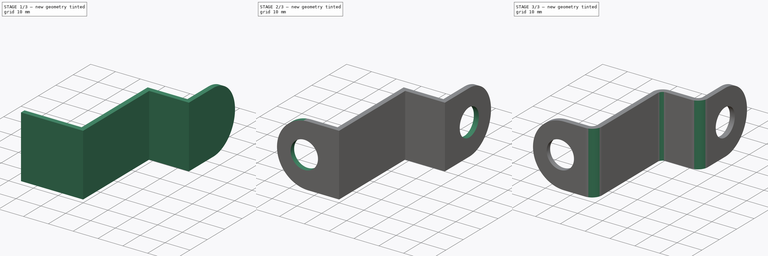
[diagram: build sequence overview — one tinted view per stage of 3, left to right]
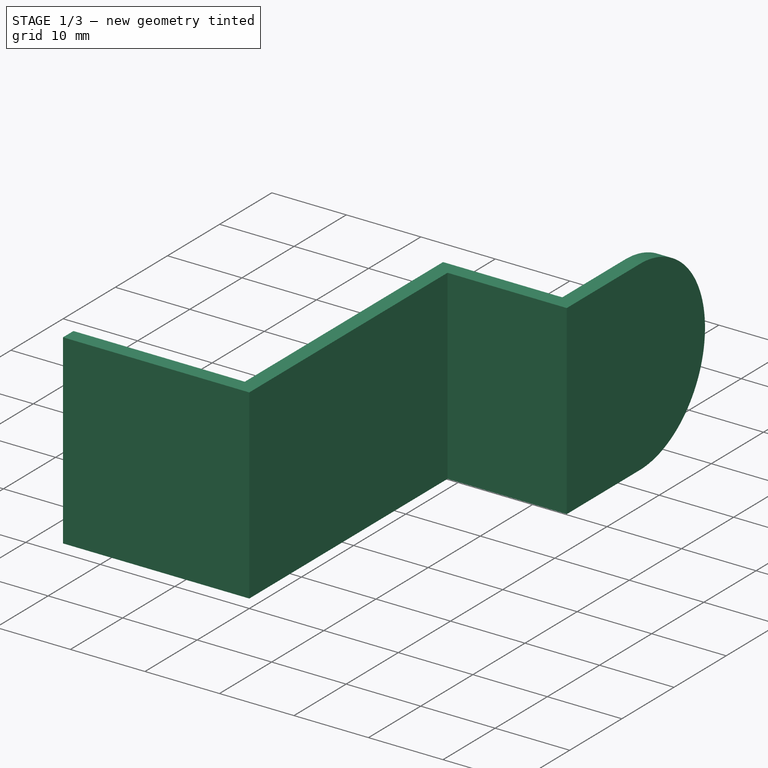
[diagram: stage 1 of 3 — iso view after this stage's code; geometry added in this stage tinted green]
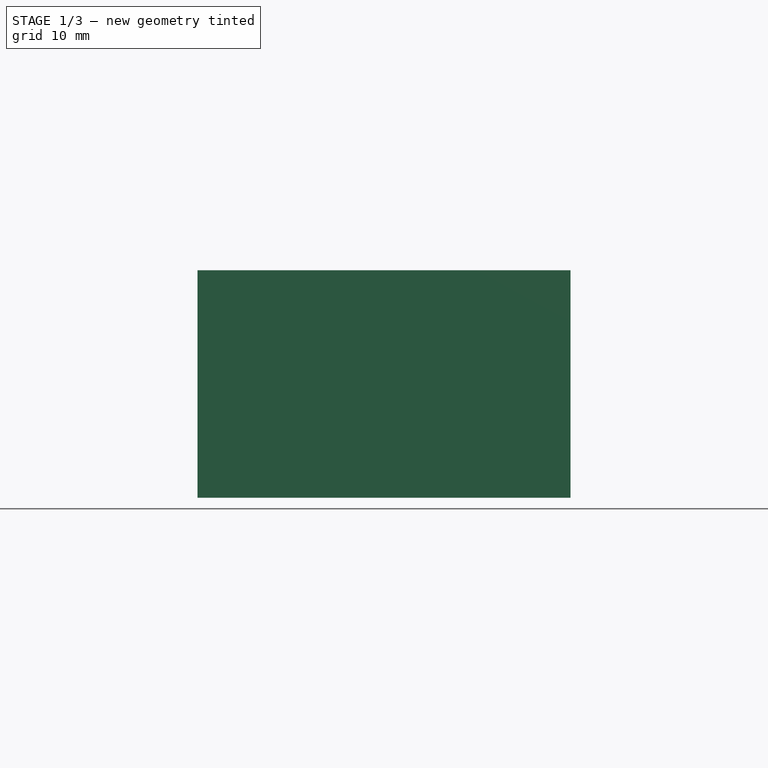
[diagram: stage 1 of 3 — front view after this stage's code; geometry added in this stage tinted green]
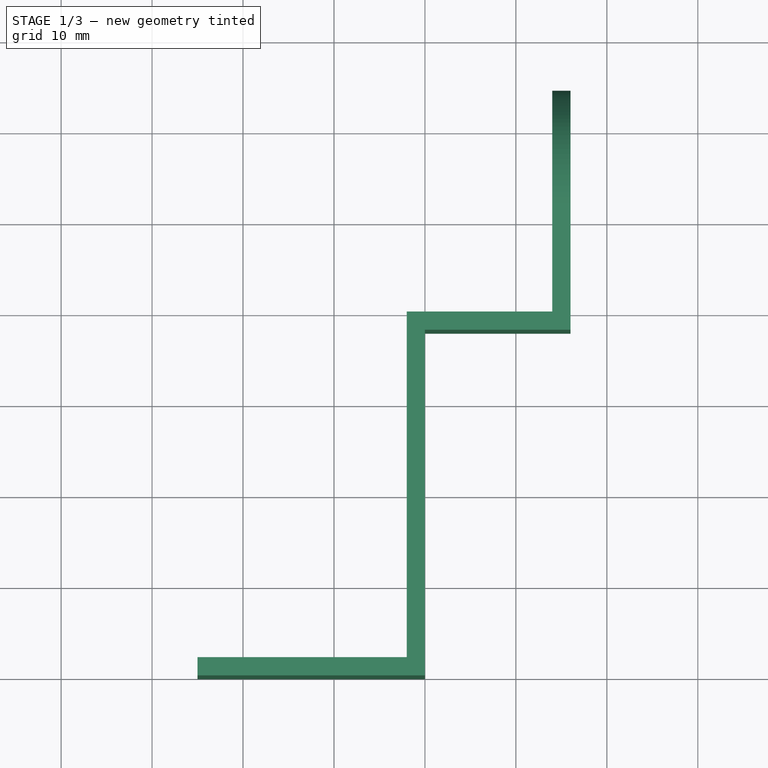
[diagram: stage 1 of 3 — top view after this stage's code; geometry added in this stage tinted green]
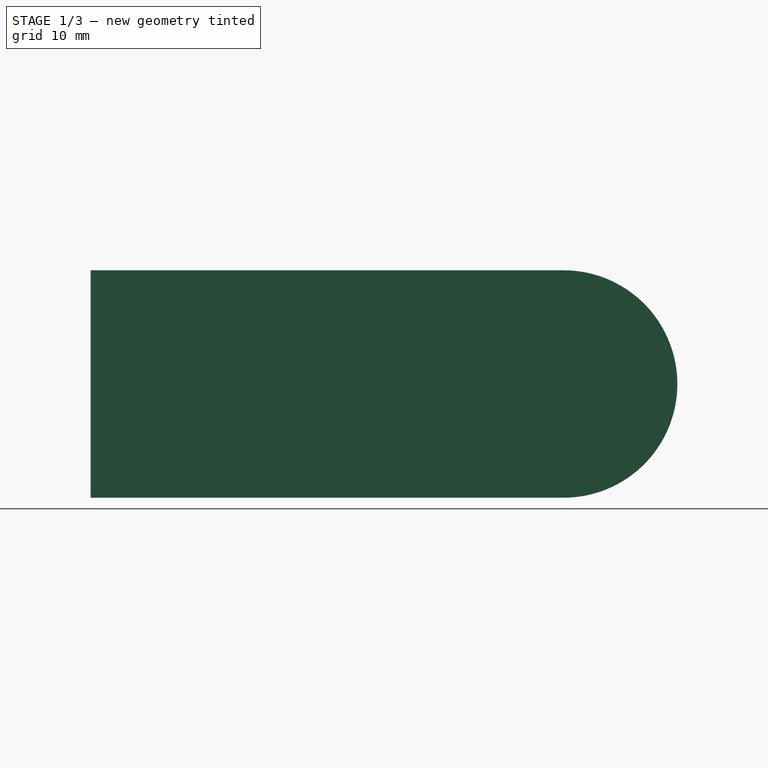
[diagram: stage 1 of 3 — right view after this stage's code; geometry added in this stage tinted green]
FCSTD DOCUMENT  (FreeCAD 0.18R4 (GitTag))
Label: door-lever-lock
License: All rights reserved
LicenseURL: http://en.wikipedia.org/wiki/All_rights_reserved
objects: Sketcher::SketchObject×5, PartDesign::Pocket×4, PartDesign::Fillet×2, PartDesign::Pad×1, PartDesign::Body×1
note: 18 computed .brp shape members not serialized (recipe doc carries the construction recipe); baked Part::Feature solids carry a one-line shape summary decoded from their .brp

FEATURE [Sketcher::SketchObject] Sketch
  MapMode = 5
  Support = -> [XY_Plane]
  sketch-geometry (10):
    g0: LineSegment StartX=-2 StartY=2 StartZ=0 EndX=-2 EndY=40 EndZ=0
    g1: LineSegment StartX=-2 StartY=40 StartZ=0 EndX=14 EndY=40 EndZ=0
    g2: LineSegment StartX=14 StartY=40 StartZ=0 EndX=14 EndY=64.5 EndZ=0
    g3: LineSegment StartX=14 StartY=64.5 StartZ=0 EndX=16 EndY=64.5 EndZ=0
    g4: LineSegment StartX=16 StartY=64.5 StartZ=0 EndX=16 EndY=38 EndZ=0
    g5: LineSegment StartX=16 StartY=38 StartZ=0 EndX=0 EndY=38 EndZ=0
    g6: LineSegment StartX=0 StartY=38 StartZ=0 EndX=0 EndY=0 EndZ=0
    g7: LineSegment StartX=0 StartY=0 StartZ=0 EndX=-25 EndY=0 EndZ=0
    g8: LineSegment StartX=-25 StartY=0 StartZ=0 EndX=-25 EndY=2 EndZ=0
    g9: LineSegment StartX=-25 StartY=2 StartZ=0 EndX=-2 EndY=2 EndZ=0
  constraints (29):
    c: Coincident(g1,g0)
    c: Horizontal(g1)
    c: Coincident(g2,g1)
    c: Vertical(g2)
    c: Coincident(g3,g2)
    c: Coincident(g4,g3)
    c: Vertical(g4)
    c: Coincident(g5,g4)
    c: Horizontal(g5)
    c: Coincident(g6,g5)
    c: Vertical(g6)
    c: Coincident(g7,g6)
    c: Horizontal(g7)
    c: DistanceX(g2,g3) = 2
    c: DistanceX(g0,g5) = 2
    c: DistanceY(g4,g1) = 2
    c: Horizontal(g3)
    c: Coincident(g6,g-1)
    c: Vertical(g0)
    c: Coincident(g8,g7)
    c: Vertical(g8)
    c: Coincident(g9,g8)
    c: Horizontal(g9)
    c: Coincident(g0,g9)
    c: DistanceY(g8,g8) = 2
    c: DistanceX(g7,g7) = 25
    c: DistanceY(g4,g4) = 26.5
    c: DistanceX(g0,g4) = 18
    c: DistanceY(g6,g0) = 40
FEATURE [PartDesign::Pad] Pad
  Length = 25
  Length2 = 100
  Profile = -> Sketch
  Refine = true
  Type = 0
FEATURE [Sketcher::SketchObject] Sketch001
  ExternalGeometry = -> [Pad]
  MapMode = 5
  Placement = pos=(14,0,0) rot=(0.57735,-0.57735,-0.57735;2.0944rad)
  Support = -> [Pad]
  sketch-geometry (6):
    g0: ArcOfCircle CenterX=-52 CenterY=12.5 CenterZ=0 NormalX=0 NormalY=0 NormalZ=1 AngleXU=0 Radius=12.5 StartAngle=1.5708 EndAngle=4.71239
    g1: LineSegment StartX=-80.5632 StartY=38.2573 StartZ=0 EndX=-80.5632 EndY=-15.5675 EndZ=0
    g2: LineSegment StartX=-52 StartY=25 StartZ=0 EndX=-52 EndY=38.2573 EndZ=0
    g3: LineSegment StartX=-52 StartY=38.2573 StartZ=0 EndX=-80.5632 EndY=38.2573 EndZ=0
    g4: LineSegment StartX=-52 StartY=0 StartZ=0 EndX=-52 EndY=-15.5675 EndZ=0
    g5: LineSegment StartX=-52 StartY=-15.5675 StartZ=0 EndX=-80.5632 EndY=-15.5675 EndZ=0
  constraints (16):
    c: PointOnObject(g0,g-1)
    c: Tangent(g0,g-1)
    c: Vertical(g1)
    c: PointOnObject(g0,g-3)
    c: Tangent(g0,g-4)
    c: Tangent(g0,g-3)
    c: Coincident(g2,g0)
    c: Vertical(g2)
    c: Coincident(g3,g2)
    c: Horizontal(g3)
    c: Coincident(g4,g0)
    c: Vertical(g4)
    c: Coincident(g5,g4)
    c: Horizontal(g5)
    c: Coincident(g1,g3)
    c: Coincident(g1,g5)
FEATURE [PartDesign::Pocket] Pocket
  BaseFeature = -> Pad
  Length = 5
  Length2 = 100
  Profile = -> Sketch001
  Refine = true
  Type = 1
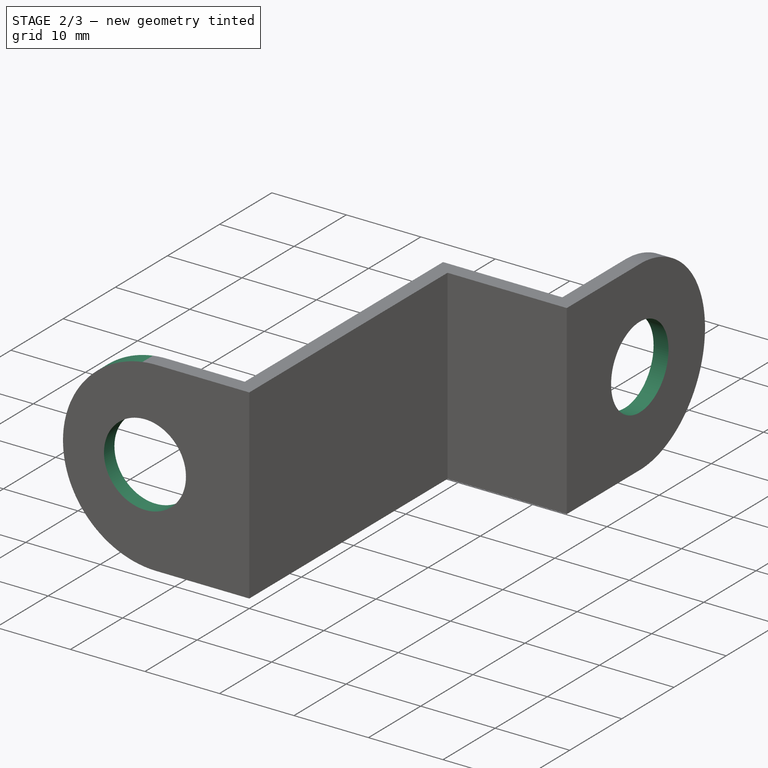
[diagram: stage 2 of 3 — iso view after this stage's code; geometry added in this stage tinted green]
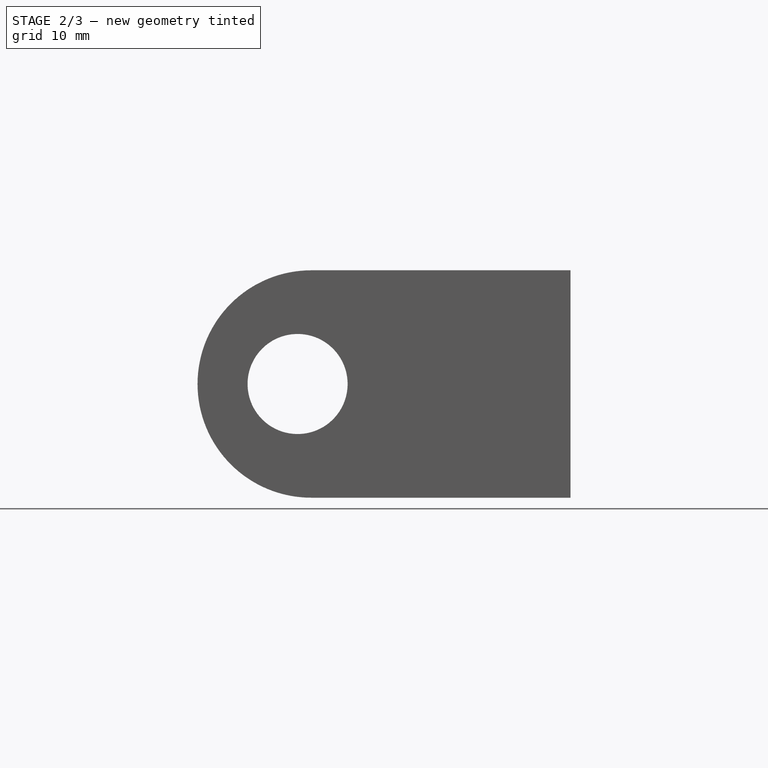
[diagram: stage 2 of 3 — front view after this stage's code; geometry added in this stage tinted green]
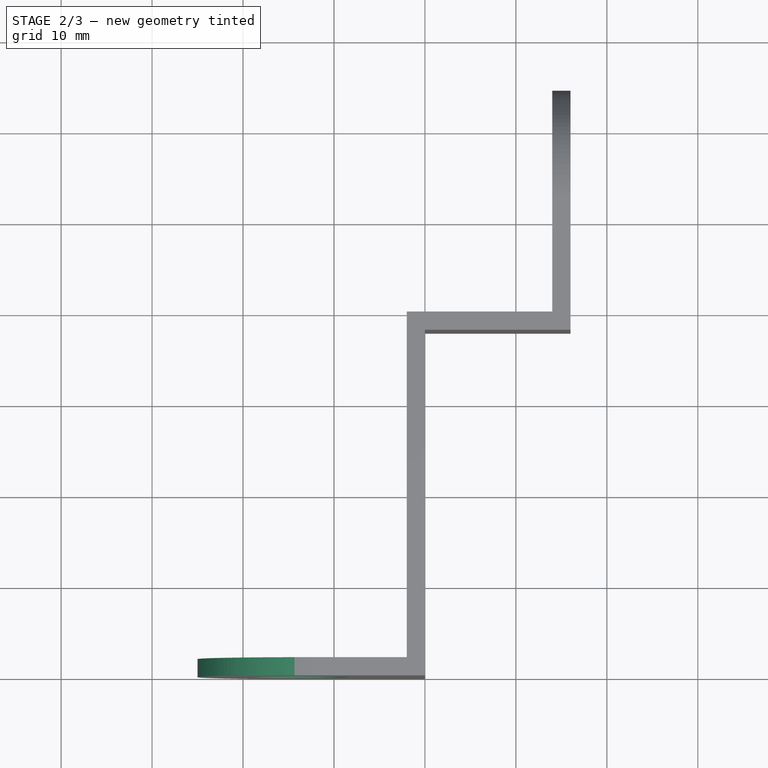
[diagram: stage 2 of 3 — top view after this stage's code; geometry added in this stage tinted green]
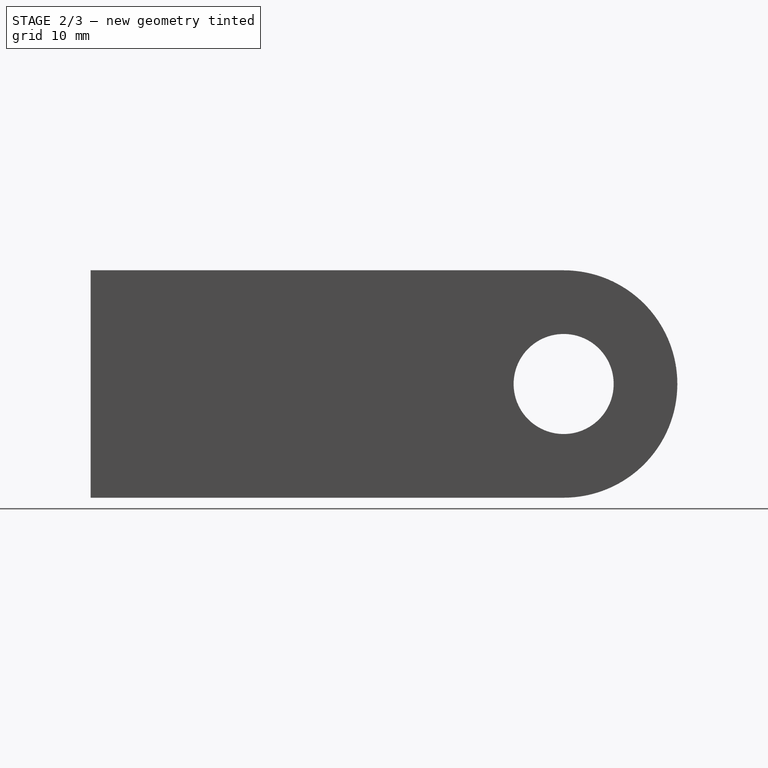
[diagram: stage 2 of 3 — right view after this stage's code; geometry added in this stage tinted green]
FEATURE [Sketcher::SketchObject] Sketch002
  ExternalGeometry = -> [Pocket]
  MapMode = 5
  Placement = pos=(0,2,0) rot=(0,0.707107,0.707107;3.14159rad)
  Support = -> [Pocket]
  sketch-geometry (6):
    g0: ArcOfCircle CenterX=12.5 CenterY=12.5 CenterZ=0 NormalX=0 NormalY=0 NormalZ=1 AngleXU=0 Radius=12.5 StartAngle=4.71239 EndAngle=7.85398
    g1: LineSegment StartX=12.5 StartY=25 StartZ=0 EndX=12.5 EndY=42.4513 EndZ=0
    g2: LineSegment StartX=12.5 StartY=42.4513 StartZ=0 EndX=36.5751 EndY=42.4513 EndZ=0
    g3: LineSegment StartX=36.5751 StartY=42.4513 StartZ=0 EndX=36.5751 EndY=-13.139 EndZ=0
    g4: LineSegment StartX=36.5751 StartY=-13.139 StartZ=0 EndX=12.5 EndY=-13.139 EndZ=0
    g5: LineSegment StartX=12.5 StartY=0 StartZ=0 EndX=12.5 EndY=-13.139 EndZ=0
  constraints (16):
    c: PointOnObject(g0,g-3)
    c: PointOnObject(g0,g-1)
    c: Tangent(g0,g-4)
    c: Coincident(g1,g0)
    c: Vertical(g1)
    c: Coincident(g2,g1)
    c: Horizontal(g2)
    c: Coincident(g3,g2)
    c: Vertical(g3)
    c: Coincident(g4,g3)
    c: Horizontal(g4)
    c: Coincident(g5,g0)
    c: Vertical(g5)
    c: Coincident(g5,g4)
    c: Tangent(g0,g-3)
    c: Tangent(g0,g-1)
FEATURE [PartDesign::Pocket] Pocket001
  BaseFeature = -> Pocket
  Length = 5
  Length2 = 100
  Profile = -> Sketch002
  Refine = true
  Type = 1
FEATURE [Sketcher::SketchObject] Sketch003
  ExternalGeometry = -> [Pocket001]
  MapMode = 5
  Placement = pos=(14,0,0) rot=(0.57735,-0.57735,-0.57735;2.0944rad)
  Support = -> [Pocket001]
  sketch-geometry (1):
    g0: Circle CenterX=-52 CenterY=12.5 CenterZ=0 NormalX=0 NormalY=0 NormalZ=1 AngleXU=0 Radius=5.5
  constraints (3):
    c: DistanceY(g-3,g0) = 12.5
    c: DistanceX(g0,g-3) = 12
    c: Diameter(g0) = 11
FEATURE [PartDesign::Pocket] Pocket002
  BaseFeature = -> Pocket001
  Length = 5
  Length2 = 100
  Profile = -> Sketch003
  Refine = true
  Type = 1
FEATURE [Sketcher::SketchObject] Sketch004
  ExternalGeometry = -> [Pocket002]
  MapMode = 5
  Placement = pos=(0,2,0) rot=(0,0.707107,0.707107;3.14159rad)
  Support = -> [Pocket002]
  sketch-geometry (1):
    g0: Circle CenterX=14 CenterY=12.5 CenterZ=0 NormalX=0 NormalY=0 NormalZ=1 AngleXU=0 Radius=5.5
  constraints (3):
    c: Diameter(g0) = 11
    c: DistanceX(g-3,g0) = 12
    c: DistanceY(g-3,g0) = 12.5
FEATURE [PartDesign::Pocket] Pocket003
  BaseFeature = -> Pocket002
  Length = 5
  Length2 = 100
  Profile = -> Sketch004
  Refine = true
  Type = 1
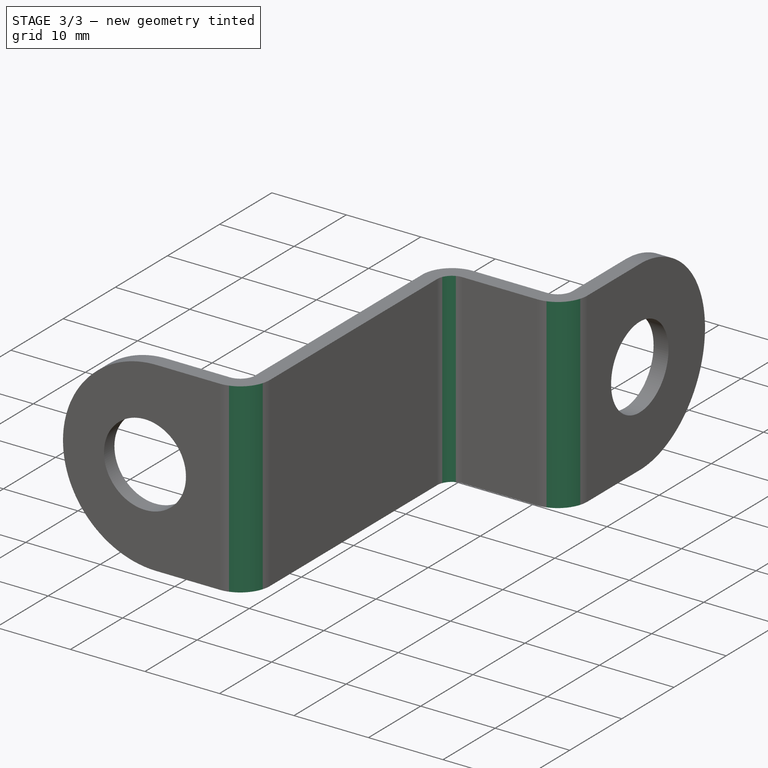
[diagram: stage 3 of 3 — iso view after this stage's code; geometry added in this stage tinted green]
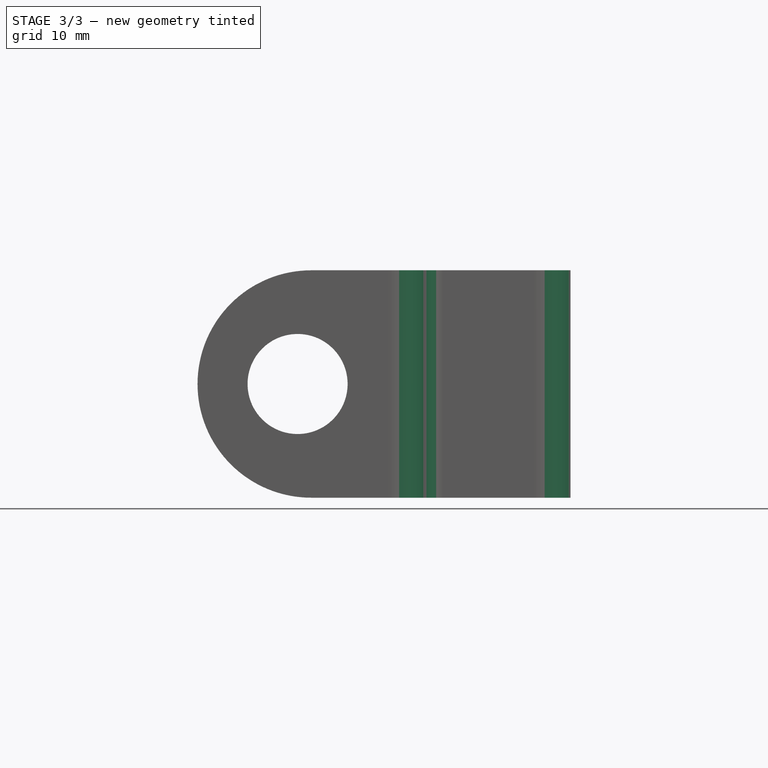
[diagram: stage 3 of 3 — front view after this stage's code; geometry added in this stage tinted green]
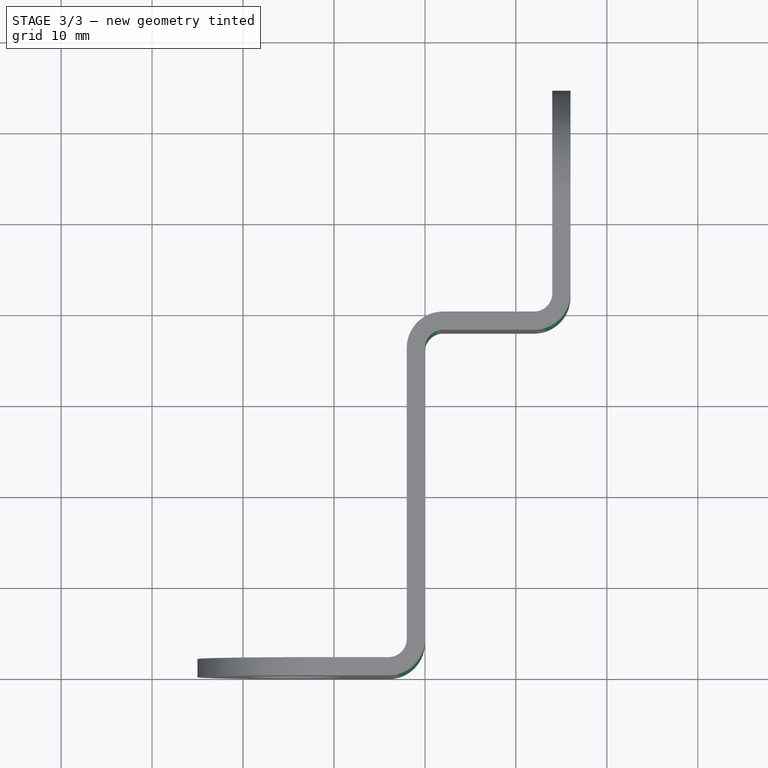
[diagram: stage 3 of 3 — top view after this stage's code; geometry added in this stage tinted green]
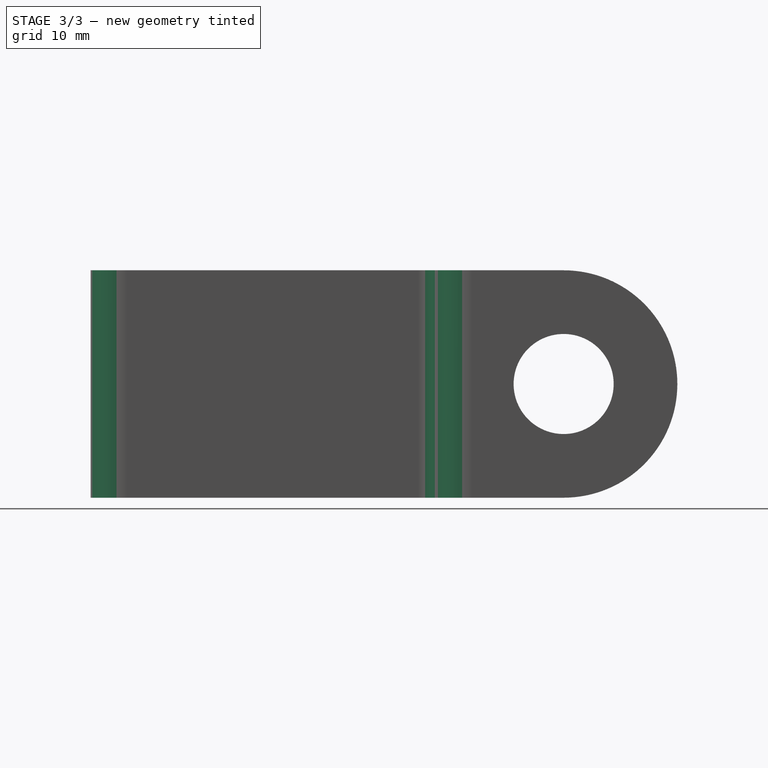
[diagram: stage 3 of 3 — right view after this stage's code; geometry added in this stage tinted green]
FEATURE [PartDesign::Fillet] Fillet
  Base = -> Pocket003 [Edge1,Edge10,Edge35]
  BaseFeature = -> Pocket003
  Radius = 2
FEATURE [PartDesign::Fillet] Fillet001
  Base = -> Fillet [Edge37,Edge32,Edge3]
  BaseFeature = -> Fillet
  Radius = 4
FEATURE [PartDesign::Body] Body
  Group = -> [Sketch,Pad,Sketch001,Pocket,Sketch002,Pocket001,Sketch003,Pocket002,Sketch004,Pocket003,Fillet,Fillet001]
  Origin = -> Origin
  Tip = -> Fillet001
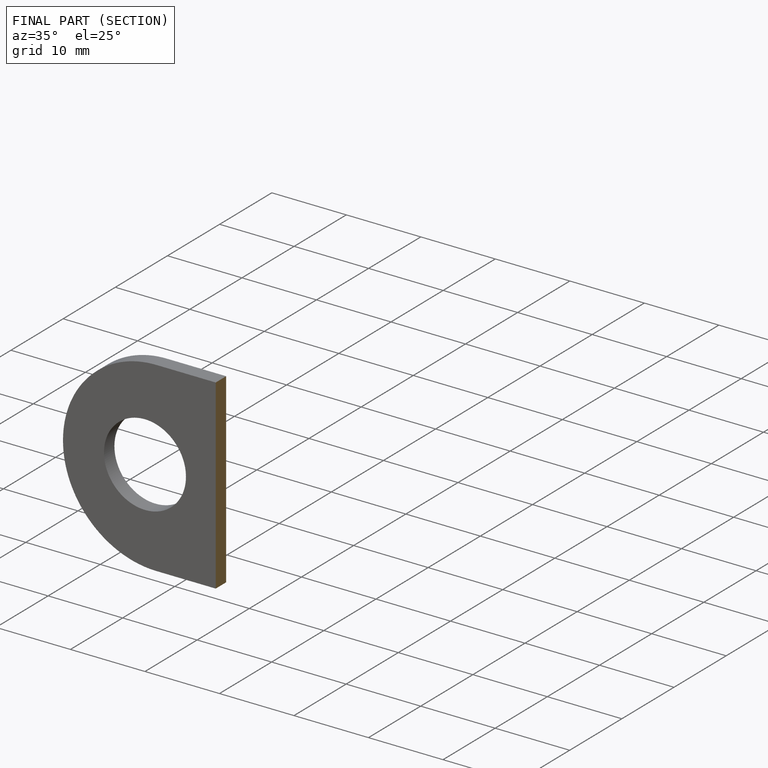
[diagram: finished part — half-section view (interior)]
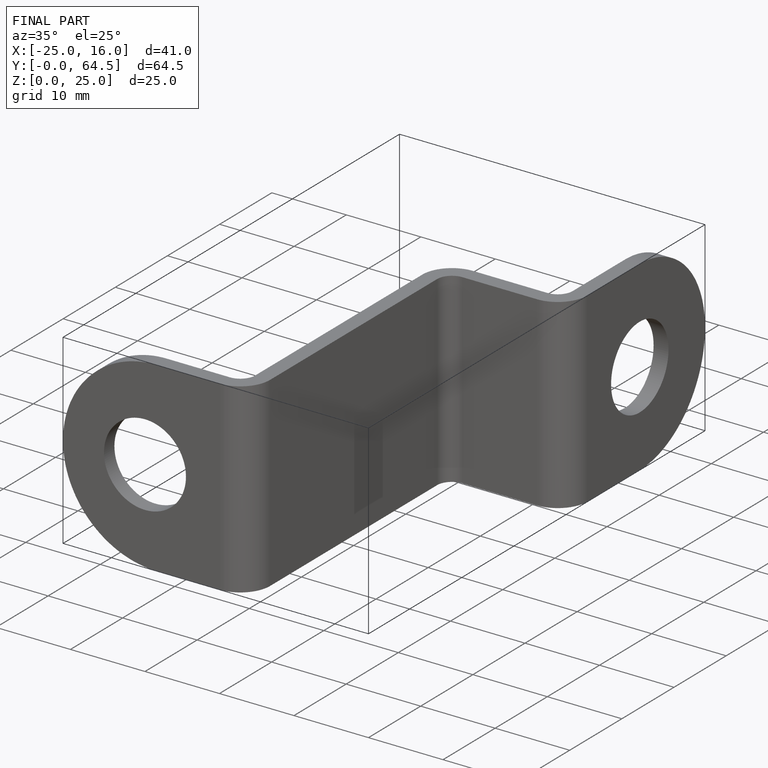
[diagram: finished part — iso view with bounding-box wireframe]
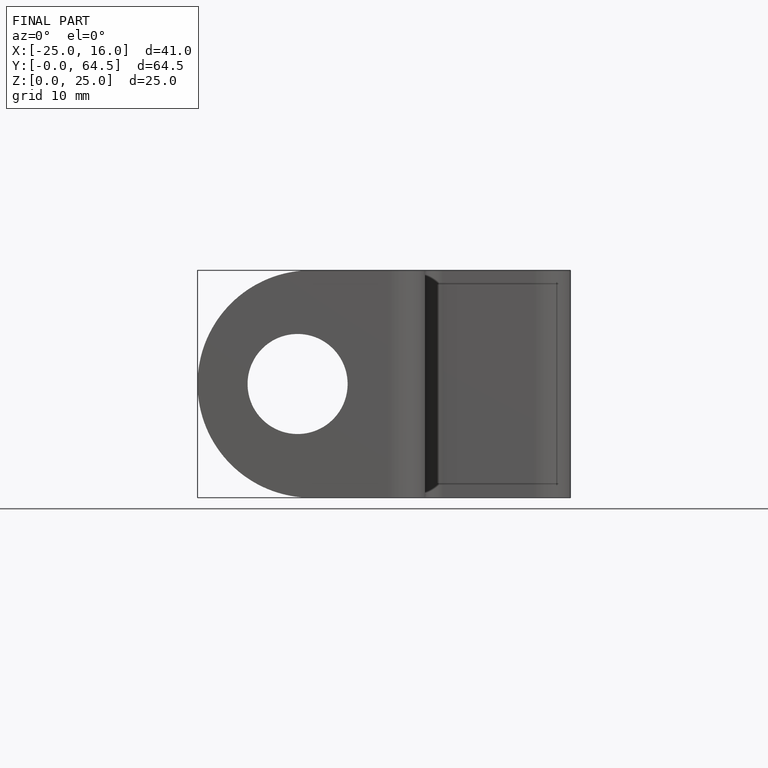
[diagram: finished part — front view with bounding-box wireframe]
